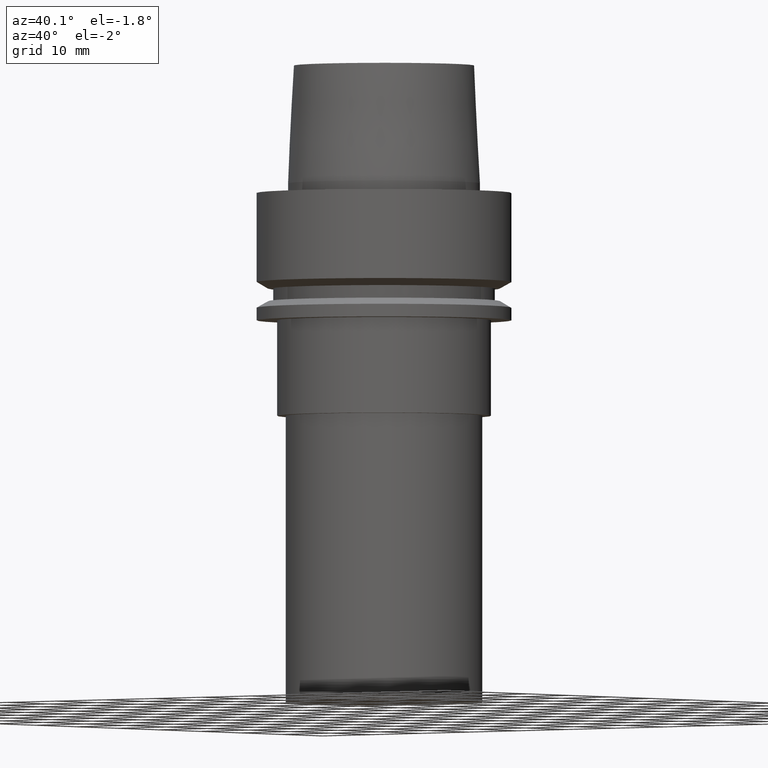
[diagram: clean part render]
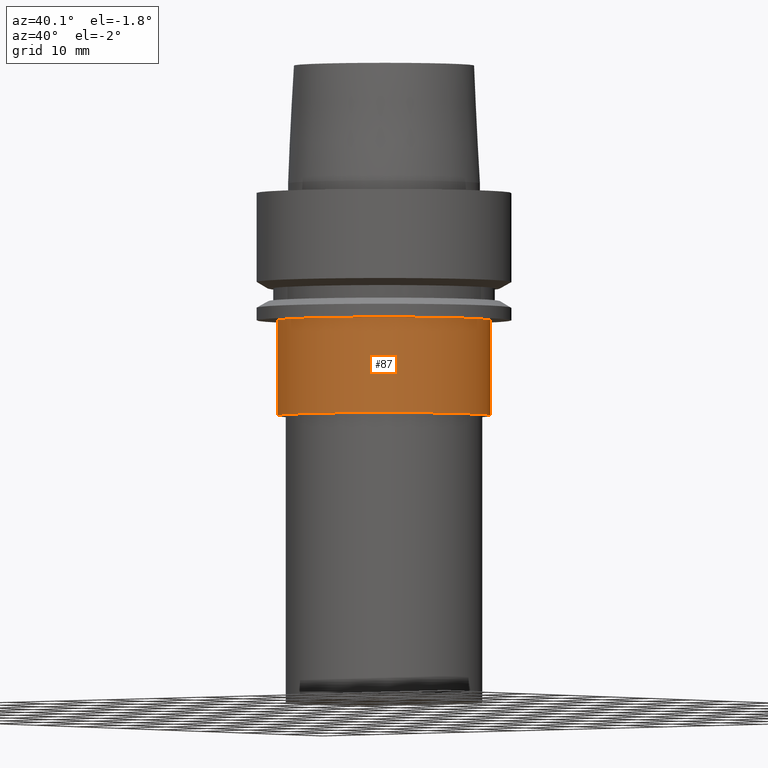
[diagram: same view with one face highlighted and labeled with its STEP entity id]
A machine part, auxiliary view. The second image highlights one B-rep face of the part: STEP entity #87.
In plain terms, the highlighted cylindrical surface (bore or boss wall) has radius 16.8 mm, axis along (-0, -0, 1).
Its self-contained STEP definition (entity closure, byte-faithful):
#87=ADVANCED_FACE('',(#127,#128),#129,.T.);
#127=FACE_BOUND('',#173,.T.);
#128=FACE_BOUND('',#174,.T.);
#129=CYLINDRICAL_SURFACE('',#175,16.8);
#173=EDGE_LOOP('',(#243));
#174=EDGE_LOOP('',(#244));
#175=AXIS2_PLACEMENT_3D('',#245,#246,#247);
#243=ORIENTED_EDGE('',*,*,#274,.F.);
#244=ORIENTED_EDGE('',*,*,#273,.T.);
#245=CARTESIAN_POINT('',(1.68388934882761E-015,3.36777869765522E-015,-27.5));
#246=DIRECTION('',(-6.12323399573677E-017,-1.22464679914735E-016,1.0));
#247=DIRECTION('',(-1.23259516440783E-032,1.0,1.22464679914735E-016));
#273=EDGE_CURVE('',#299,#299,#300,.T.);
#274=EDGE_CURVE('',#301,#301,#302,.T.);
#299=VERTEX_POINT('',#329);
#300=CIRCLE('',#330,16.8);
#301=VERTEX_POINT('',#331);
#302=CIRCLE('',#332,16.8);
#329=CARTESIAN_POINT('',(1.22464679914735E-015,16.8,-20.0));
#330=AXIS2_PLACEMENT_3D('',#370,#371,#372);
#331=CARTESIAN_POINT('',(2.14313189850787E-015,16.8,-35.0));
#332=AXIS2_PLACEMENT_3D('',#373,#374,#375);
#370=CARTESIAN_POINT('',(1.22464679914735E-015,2.44929359829471E-015,-20.0));
#371=DIRECTION('',(6.12323399573677E-017,1.22464679914735E-016,-1.0));
#372=DIRECTION('',(-1.23259516440783E-032,1.0,1.22464679914735E-016));
#373=CARTESIAN_POINT('',(2.14313189850787E-015,4.28626379701574E-015,-35.0));
#374=DIRECTION('',(6.12323399573677E-017,1.22464679914735E-016,-1.0));
#375=DIRECTION('',(-1.23259516440783E-032,1.0,1.22464679914735E-016));